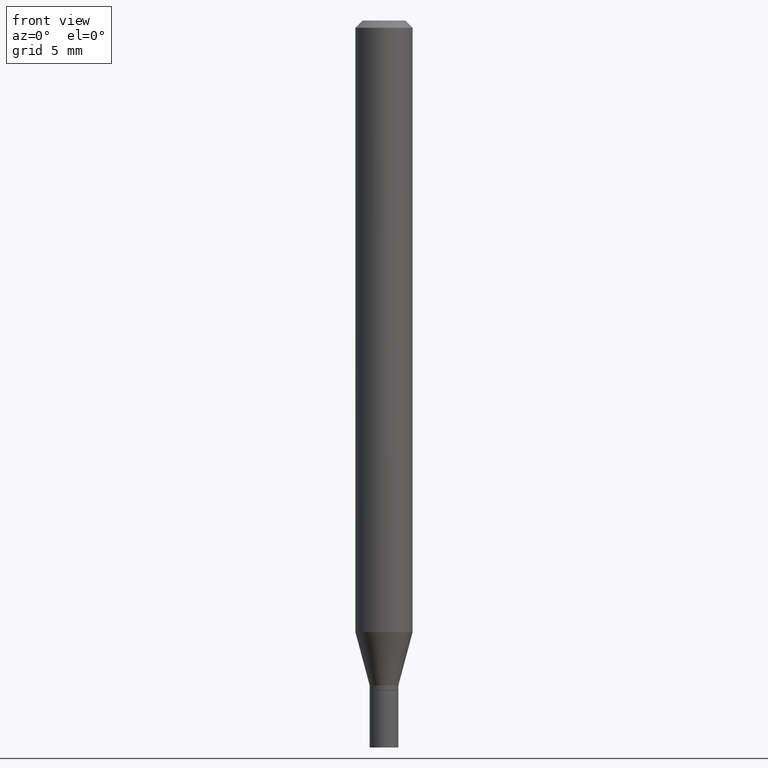
[diagram: clean part render]
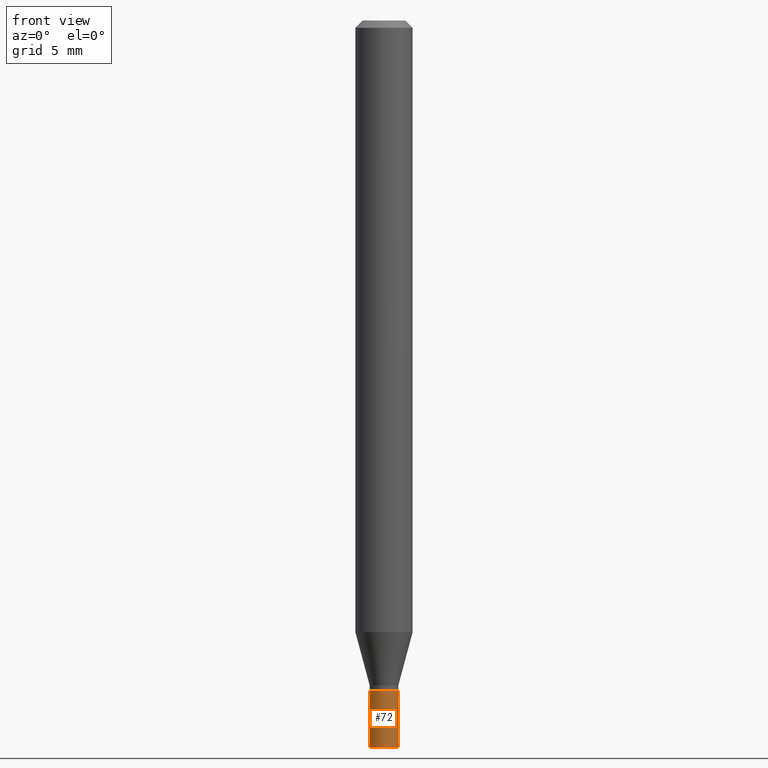
[diagram: same view with one face highlighted and labeled with its STEP entity id]
A machine part, front view. The second image highlights one B-rep face of the part: STEP entity #72.
In plain terms, the highlighted cylindrical surface (edge-blend (fillet) strip) has radius 0.7506 mm, axis along (-0, 0, 1).
Its self-contained STEP definition (entity closure, byte-faithful):
#7 = CYLINDRICAL_SURFACE ( 'NONE', #77, 0.02954999999999999988 ) ;
#9 = CARTESIAN_POINT ( 'NONE',  ( 0.000000000000000000, 0.000000000000000000, 0.000000000000000000 ) ) ;
#33 = ORIENTED_EDGE ( 'NONE', *, *, #438, .T. ) ;
#39 = AXIS2_PLACEMENT_3D ( 'NONE', #193, #188, #436 ) ;
#45 = FACE_OUTER_BOUND ( 'NONE', #432, .T. ) ;
#46 = DIRECTION ( 'NONE',  ( -2.445468806185136877E-29, 3.491481338843145188E-15, 1.000000000000000000 ) ) ;
#70 = AXIS2_PLACEMENT_3D ( 'NONE', #443, #149, #366 ) ;
#72 = ADVANCED_FACE ( 'NONE', ( #45 ), #7, .T. ) ;
#77 = AXIS2_PLACEMENT_3D ( 'NONE', #9, #397, #84 ) ;
#84 = DIRECTION ( 'NONE',  ( 1.000000000000000000, -6.982962677686266711E-15, 4.876176775795935793E-29 ) ) ;
#89 = EDGE_CURVE ( 'NONE', #450, #301, #259, .T. ) ;
#93 = VERTEX_POINT ( 'NONE', #106 ) ;
#106 = CARTESIAN_POINT ( 'NONE',  ( 0.02954999999999999988, -5.031224609272972078E-15, -1.381900000000000128 ) ) ;
#113 = CARTESIAN_POINT ( 'NONE',  ( -0.02954999999999999988, -4.821084656788921754E-15, -1.381900000000000128 ) ) ;
#143 = ORIENTED_EDGE ( 'NONE', *, *, #407, .F. ) ;
#148 = VECTOR ( 'NONE', #46, 39.37007874015748143 ) ;
#149 = DIRECTION ( 'NONE',  ( -2.445468806185136597E-29, 3.491481338843145583E-15, 1.000000000000000000 ) ) ;
#188 = DIRECTION ( 'NONE',  ( -2.445468806185136597E-29, 3.491481338843145583E-15, 1.000000000000000000 ) ) ;
#192 = CARTESIAN_POINT ( 'NONE',  ( -0.02954999999999999988, -4.821084656788921754E-15, -1.500000000000000222 ) ) ;
#193 = CARTESIAN_POINT ( 'NONE',  ( 3.668203209277704895E-29, -5.237222008264718177E-15, -1.500000000000000222 ) ) ;
#214 = ORIENTED_EDGE ( 'NONE', *, *, #365, .F. ) ;
#216 = ORIENTED_EDGE ( 'NONE', *, *, #89, .T. ) ;
#259 = CIRCLE ( 'NONE', #39, 0.02954999999999999988 ) ;
#260 = CARTESIAN_POINT ( 'NONE',  ( 0.02954999999999999988, -2.063465471256291914E-16, 1.440910237247699070E-30 ) ) ;
#267 = LINE ( 'NONE', #331, #309 ) ;
#275 = CIRCLE ( 'NONE', #70, 0.02954999999999999988 ) ;
#292 = LINE ( 'NONE', #260, #148 ) ;
#293 = CARTESIAN_POINT ( 'NONE',  ( 0.02954999999999999988, -5.443568555390347787E-15, -1.500000000000000222 ) ) ;
#301 = VERTEX_POINT ( 'NONE', #293 ) ;
#309 = VECTOR ( 'NONE', #338, 39.37007874015748143 ) ;
#310 = VERTEX_POINT ( 'NONE', #113 ) ;
#331 = CARTESIAN_POINT ( 'NONE',  ( -0.02954999999999999988, 2.099653784171096041E-16, -1.453545319170324550E-30 ) ) ;
#338 = DIRECTION ( 'NONE',  ( -2.445468806185136877E-29, 3.491481338843145188E-15, 1.000000000000000000 ) ) ;
#365 = EDGE_CURVE ( 'NONE', #310, #93, #275, .T. ) ;
#366 = DIRECTION ( 'NONE',  ( 1.000000000000000000, -6.982962677686261977E-15, 0.000000000000000000 ) ) ;
#397 = DIRECTION ( 'NONE',  ( -2.445468806185136597E-29, 3.491481338843145583E-15, 1.000000000000000000 ) ) ;
#407 = EDGE_CURVE ( 'NONE', #450, #310, #267, .T. ) ;
#432 = EDGE_LOOP ( 'NONE', ( #143, #216, #33, #214 ) ) ;
#436 = DIRECTION ( 'NONE',  ( 1.000000000000000000, -6.982962677686261977E-15, 0.000000000000000000 ) ) ;
#438 = EDGE_CURVE ( 'NONE', #301, #93, #292, .T. ) ;
#443 = CARTESIAN_POINT ( 'NONE',  ( 3.379393343267239894E-29, -4.824878062147343257E-15, -1.381900000000000128 ) ) ;
#450 = VERTEX_POINT ( 'NONE', #192 ) ;